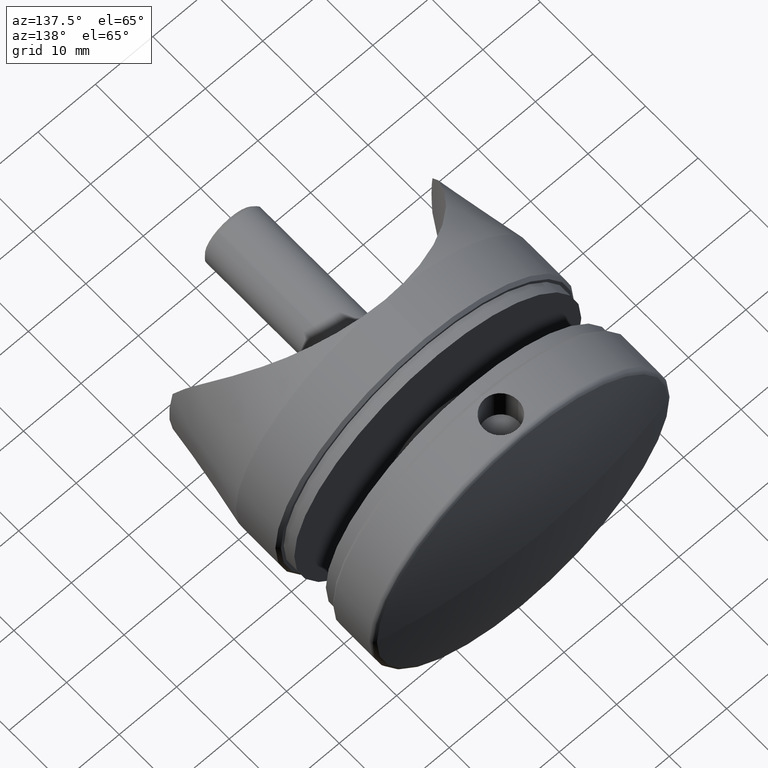
[diagram: clean part render]
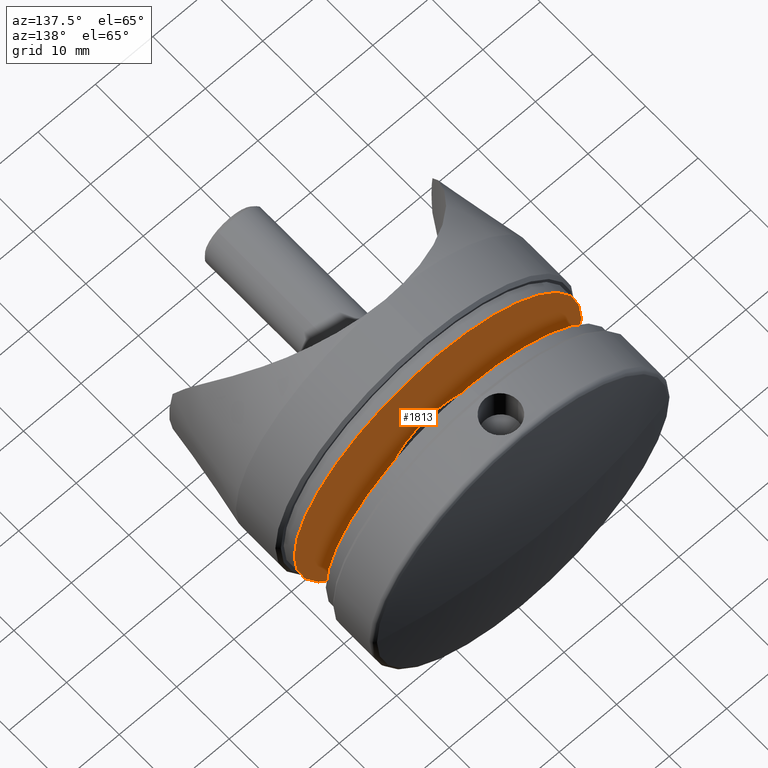
[diagram: same view with one face highlighted and labeled with its STEP entity id]
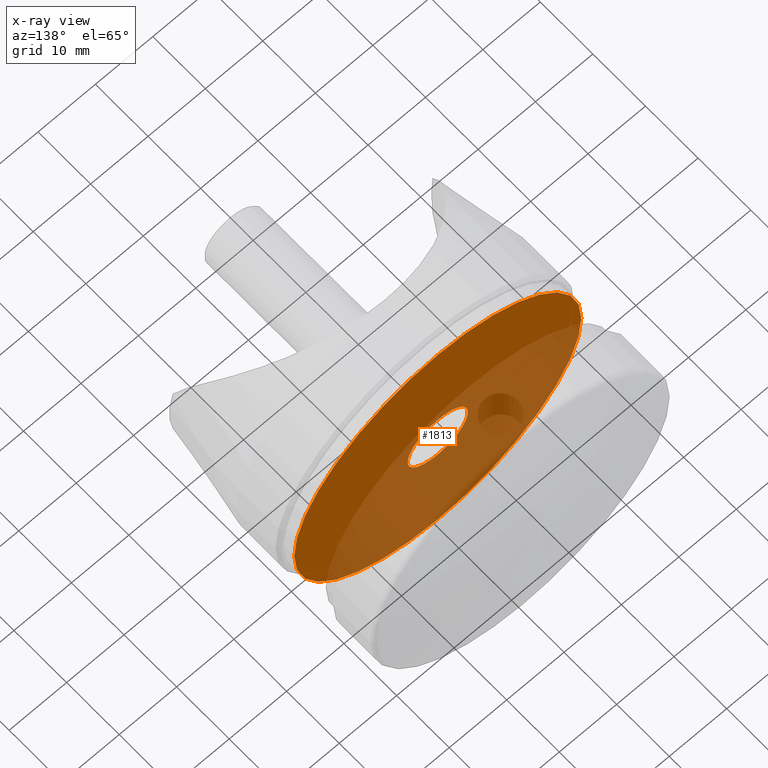
[diagram: x-ray of the same camera — body ghosted, the highlighted face saturated]
A machine part, auxiliary view. The second image highlights one B-rep face of the part: STEP entity #1813.
The next image is the same camera in x-ray: the body ghosted, the highlighted face saturated — about 52% of this face is hidden behind the body in this view.
In plain terms, the highlighted planar face has unit normal (0, 1, 0).
Its self-contained STEP definition (entity closure, byte-faithful):
#259 = VERTEX_POINT ( 'NONE', #18114 ) ;
#352 = DIRECTION ( 'NONE',  ( 0.000000000000000000, -0.000000000000000000, 1.000000000000000000 ) ) ;
#502 = CARTESIAN_POINT ( 'NONE',  ( 0.000000000000000000, 1.000000000000000000, 0.000000000000000000 ) ) ;
#772 = CARTESIAN_POINT ( 'NONE',  ( 0.000000000000000000, 1.000000000000000000, -25.00000000000000000 ) ) ;
#1015 = FACE_BOUND ( 'NONE', #7488, .T. ) ;
#1146 = EDGE_CURVE ( 'NONE', #259, #12104, #11435, .T. ) ;
#1546 = CIRCLE ( 'NONE', #4818, 25.00000000000000000 ) ;
#1813 = ADVANCED_FACE ( 'NONE', ( #10748, #1015 ), #18584, .T. ) ;
#2223 = CARTESIAN_POINT ( 'NONE',  ( 0.000000000000000000, 1.000000000000000000, -5.250000000000000000 ) ) ;
#2302 = AXIS2_PLACEMENT_3D ( 'NONE', #3632, #13830, #352 ) ;
#2775 = VERTEX_POINT ( 'NONE', #772 ) ;
#3632 = CARTESIAN_POINT ( 'NONE',  ( 0.000000000000000000, 1.000000000000000000, 0.000000000000000000 ) ) ;
#3978 = EDGE_LOOP ( 'NONE', ( #10715, #13658 ) ) ;
#4818 = AXIS2_PLACEMENT_3D ( 'NONE', #6592, #13881, #18229 ) ;
#4894 = AXIS2_PLACEMENT_3D ( 'NONE', #17349, #15633, #17165 ) ;
#5342 = CIRCLE ( 'NONE', #6119, 5.250000000000000000 ) ;
#5754 = CARTESIAN_POINT ( 'NONE',  ( 0.000000000000000000, 1.000000000000000000, 0.000000000000000000 ) ) ;
#5881 = EDGE_CURVE ( 'NONE', #12104, #259, #5342, .T. ) ;
#6053 = CIRCLE ( 'NONE', #4894, 25.00000000000000000 ) ;
#6119 = AXIS2_PLACEMENT_3D ( 'NONE', #5754, #17769, #14637 ) ;
#6592 = CARTESIAN_POINT ( 'NONE',  ( 0.000000000000000000, 1.000000000000000000, 0.000000000000000000 ) ) ;
#7488 = EDGE_LOOP ( 'NONE', ( #15942, #11282 ) ) ;
#9611 = EDGE_CURVE ( 'NONE', #2775, #11456, #6053, .T. ) ;
#9829 = CARTESIAN_POINT ( 'NONE',  ( 3.061616997868383043E-15, 1.000000000000000000, 25.00000000000000000 ) ) ;
#10251 = AXIS2_PLACEMENT_3D ( 'NONE', #502, #11551, #11811 ) ;
#10715 = ORIENTED_EDGE ( 'NONE', *, *, #9611, .T. ) ;
#10748 = FACE_OUTER_BOUND ( 'NONE', #3978, .T. ) ;
#11282 = ORIENTED_EDGE ( 'NONE', *, *, #1146, .F. ) ;
#11435 = CIRCLE ( 'NONE', #10251, 5.250000000000000000 ) ;
#11456 = VERTEX_POINT ( 'NONE', #9829 ) ;
#11551 = DIRECTION ( 'NONE',  ( 0.000000000000000000, 1.000000000000000000, 0.000000000000000000 ) ) ;
#11811 = DIRECTION ( 'NONE',  ( 0.000000000000000000, 0.000000000000000000, 1.000000000000000000 ) ) ;
#12104 = VERTEX_POINT ( 'NONE', #2223 ) ;
#13658 = ORIENTED_EDGE ( 'NONE', *, *, #14041, .T. ) ;
#13830 = DIRECTION ( 'NONE',  ( 0.000000000000000000, 1.000000000000000000, 0.000000000000000000 ) ) ;
#13881 = DIRECTION ( 'NONE',  ( 0.000000000000000000, 1.000000000000000000, 0.000000000000000000 ) ) ;
#14041 = EDGE_CURVE ( 'NONE', #11456, #2775, #1546, .T. ) ;
#14637 = DIRECTION ( 'NONE',  ( 0.000000000000000000, 0.000000000000000000, 1.000000000000000000 ) ) ;
#15633 = DIRECTION ( 'NONE',  ( 0.000000000000000000, 1.000000000000000000, 0.000000000000000000 ) ) ;
#15942 = ORIENTED_EDGE ( 'NONE', *, *, #5881, .F. ) ;
#17165 = DIRECTION ( 'NONE',  ( 0.000000000000000000, 0.000000000000000000, 1.000000000000000000 ) ) ;
#17349 = CARTESIAN_POINT ( 'NONE',  ( 0.000000000000000000, 1.000000000000000000, 0.000000000000000000 ) ) ;
#17769 = DIRECTION ( 'NONE',  ( 0.000000000000000000, 1.000000000000000000, 0.000000000000000000 ) ) ;
#18114 = CARTESIAN_POINT ( 'NONE',  ( 6.429395695523604153E-16, 1.000000000000000000, 5.250000000000000000 ) ) ;
#18229 = DIRECTION ( 'NONE',  ( 0.000000000000000000, 0.000000000000000000, 1.000000000000000000 ) ) ;
#18584 = PLANE ( 'NONE',  #2302 ) ;